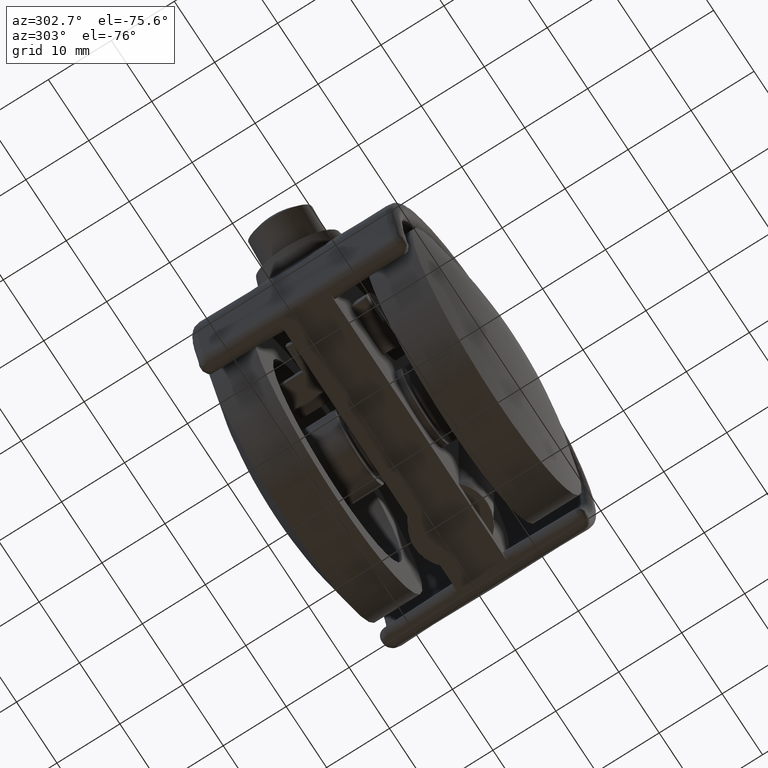
[diagram: clean part render]
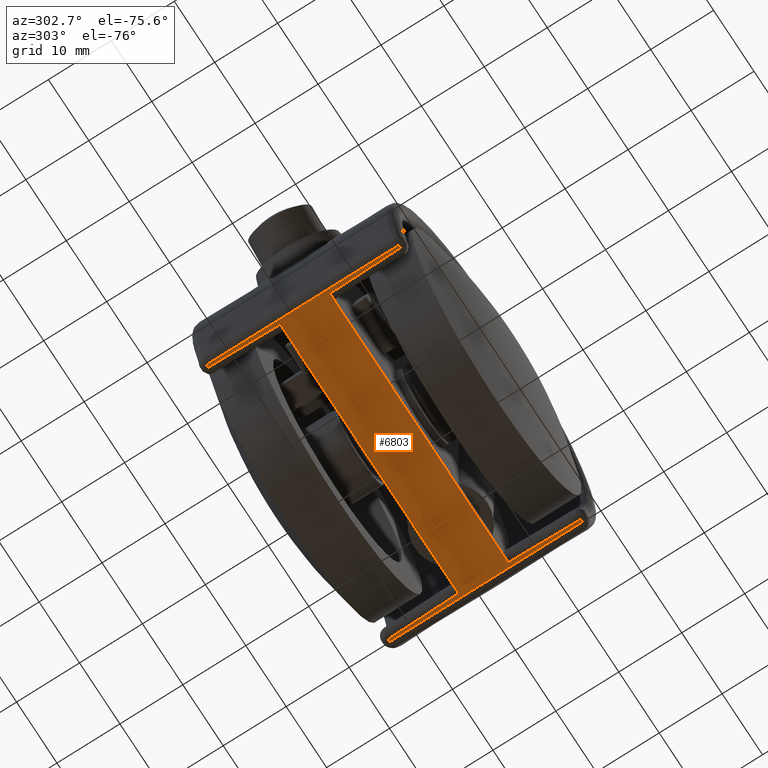
[diagram: same view with one face highlighted and labeled with its STEP entity id]
A machine part, auxiliary view. The second image highlights one B-rep face of the part: STEP entity #6803.
In plain terms, the highlighted face is a freeform B-spline surface patch.
Its self-contained STEP definition (entity closure, byte-faithful):
#4509=CARTESIAN_POINT('',(-22.069919937677799,-3.950000000000000,-9.700000000000001));
#4510=VERTEX_POINT('',#4509);
#4578=CARTESIAN_POINT('',(-22.286015014921698,-15.300000000000001,-9.700000000000001));
#4579=VERTEX_POINT('',#4578);
#4589=CARTESIAN_POINT('',(-22.069919937677799,-3.950000000000000,-9.700000000000001));
#4590=CARTESIAN_POINT('',(-22.099499015672961,-7.734022974811633,-9.700000000000001));
#4591=CARTESIAN_POINT('',(-22.171588934910989,-11.517591989419410,-9.700000000000001));
#4592=CARTESIAN_POINT('',(-22.286015014921649,-15.300000000000001,-9.700000000000001));
#4593=QUASI_UNIFORM_CURVE('',3,(#4589,#4590,#4591,#4592),.UNSPECIFIED.,.F.,.U.);
#4594=EDGE_CURVE('',#4510,#4579,#4593,.T.);
#4964=CARTESIAN_POINT('',(22.286015014921698,-15.300000000000001,-9.700000000000001));
#4965=VERTEX_POINT('',#4964);
#4966=CARTESIAN_POINT('',(22.069919937677749,-3.950000000000000,-9.700000000000001));
#4967=VERTEX_POINT('',#4966);
#4968=CARTESIAN_POINT('',(22.286015014921698,-15.300000000000001,-9.700000000000001));
#4969=CARTESIAN_POINT('',(22.171588934911039,-11.517591989419410,-9.700000000000001));
#4970=CARTESIAN_POINT('',(22.099499015673011,-7.734022974811633,-9.700000000000001));
#4971=CARTESIAN_POINT('',(22.069919937677749,-3.950000000000000,-9.700000000000001));
#4972=QUASI_UNIFORM_CURVE('',3,(#4968,#4969,#4970,#4971),.UNSPECIFIED.,.F.,.U.);
#4973=EDGE_CURVE('',#4965,#4967,#4972,.T.);
#5125=CARTESIAN_POINT('',(22.695375044268399,15.280739539795499,-9.700000000000001));
#5126=VERTEX_POINT('',#5125);
#5140=CARTESIAN_POINT('',(22.582073607177900,15.300000000000001,-9.700000000000001));
#5141=VERTEX_POINT('',#5140);
#5142=CARTESIAN_POINT('',(22.582073607177900,15.300000000000001,-9.700000000000001));
#5143=CARTESIAN_POINT('',(22.620932134522409,15.300000000000001,-9.700000000000001));
#5144=CARTESIAN_POINT('',(22.658709036317489,15.293637237748040,-9.700000000000001));
#5145=CARTESIAN_POINT('',(22.695375044268399,15.280739539795499,-9.700000000000001));
#5146=QUASI_UNIFORM_CURVE('',3,(#5142,#5143,#5144,#5145),.UNSPECIFIED.,.F.,.U.);
#5147=EDGE_CURVE('',#5141,#5126,#5146,.T.);
#5399=CARTESIAN_POINT('',(-22.695375044268399,15.280739539795499,-9.700000000000001));
#5400=VERTEX_POINT('',#5399);
#5401=CARTESIAN_POINT('',(-22.582073607177900,15.300000000000001,-9.700000000000001));
#5402=VERTEX_POINT('',#5401);
#5403=CARTESIAN_POINT('',(-22.695375044268399,15.280739539795499,-9.700000000000001));
#5404=CARTESIAN_POINT('',(-22.658968062889510,15.293546122116030,-9.700000000000001));
#5405=CARTESIAN_POINT('',(-22.620665086453968,15.300000000000340,-9.700000000000001));
#5406=CARTESIAN_POINT('',(-22.582073607177900,15.300000000000001,-9.700000000000001));
#5407=QUASI_UNIFORM_CURVE('',3,(#5403,#5404,#5405,#5406),.UNSPECIFIED.,.F.,.U.);
#5408=EDGE_CURVE('',#5400,#5402,#5407,.T.);
#5528=CARTESIAN_POINT('',(22.695375044268399,-15.280739539795601,-9.700000000000001));
#5529=VERTEX_POINT('',#5528);
#5553=CARTESIAN_POINT('',(22.695375044268399,15.280739539795499,-9.700000000000001));
#5554=CARTESIAN_POINT('',(22.695375044268399,-15.280739539795601,-9.700000000000001));
#5555=QUASI_UNIFORM_CURVE('',1,(#5553,#5554),.UNSPECIFIED.,.F.,.U.);
#5556=EDGE_CURVE('',#5126,#5529,#5555,.T.);
#5581=CARTESIAN_POINT('',(-22.695375044268399,-15.280739539795601,-9.700000000000001));
#5582=VERTEX_POINT('',#5581);
#5614=CARTESIAN_POINT('',(-22.695375044268399,-15.280739539795601,-9.700000000000001));
#5615=CARTESIAN_POINT('',(-22.695375044268399,15.280739539795499,-9.700000000000001));
#5616=QUASI_UNIFORM_CURVE('',1,(#5614,#5615),.UNSPECIFIED.,.F.,.U.);
#5617=EDGE_CURVE('',#5582,#5400,#5616,.T.);
#5907=CARTESIAN_POINT('',(22.582073607177900,-15.300000000000001,-9.700000000000001));
#5908=VERTEX_POINT('',#5907);
#5922=CARTESIAN_POINT('',(22.695375044268399,-15.280739539795601,-9.700000000000001));
#5923=CARTESIAN_POINT('',(22.658968062889510,-15.293546122116130,-9.700000000000001));
#5924=CARTESIAN_POINT('',(22.620665086453968,-15.300000000000489,-9.700000000000001));
#5925=CARTESIAN_POINT('',(22.582073607177900,-15.300000000000001,-9.700000000000001));
#5926=QUASI_UNIFORM_CURVE('',3,(#5922,#5923,#5924,#5925),.UNSPECIFIED.,.F.,.U.);
#5927=EDGE_CURVE('',#5529,#5908,#5926,.T.);
#5953=CARTESIAN_POINT('',(-22.582073607177900,-15.300000000000001,-9.700000000000001));
#5954=VERTEX_POINT('',#5953);
#5955=CARTESIAN_POINT('',(-22.582073607177900,-15.300000000000001,-9.700000000000001));
#5956=CARTESIAN_POINT('',(-22.620932134522398,-15.300000000000001,-9.700000000000001));
#5957=CARTESIAN_POINT('',(-22.658709036317489,-15.293637237748131,-9.700000000000001));
#5958=CARTESIAN_POINT('',(-22.695375044268399,-15.280739539795601,-9.700000000000001));
#5959=QUASI_UNIFORM_CURVE('',3,(#5955,#5956,#5957,#5958),.UNSPECIFIED.,.F.,.U.);
#5960=EDGE_CURVE('',#5954,#5582,#5959,.T.);
#6002=CARTESIAN_POINT('',(22.069919937677849,3.950000000000000,-9.700000000000001));
#6003=VERTEX_POINT('',#6002);
#6071=CARTESIAN_POINT('',(22.286015014921698,15.300000000000001,-9.700000000000001));
#6072=VERTEX_POINT('',#6071);
#6084=CARTESIAN_POINT('',(22.069919937677849,3.950000000000000,-9.700000000000001));
#6085=CARTESIAN_POINT('',(22.099499015673011,7.734022974811631,-9.700000000000001));
#6086=CARTESIAN_POINT('',(22.171588934910989,11.517591989419410,-9.700000000000001));
#6087=CARTESIAN_POINT('',(22.286015014921698,15.300000000000001,-9.700000000000001));
#6088=QUASI_UNIFORM_CURVE('',3,(#6084,#6085,#6086,#6087),.UNSPECIFIED.,.F.,.U.);
#6089=EDGE_CURVE('',#6003,#6072,#6088,.T.);
#6489=CARTESIAN_POINT('',(-22.286015014921698,15.300000000000001,-9.700000000000001));
#6490=VERTEX_POINT('',#6489);
#6491=CARTESIAN_POINT('',(-22.069919937677799,3.950000000000000,-9.700000000000001));
#6492=VERTEX_POINT('',#6491);
#6493=CARTESIAN_POINT('',(-22.286015014921698,15.300000000000001,-9.700000000000001));
#6494=CARTESIAN_POINT('',(-22.171588934911039,11.517591989419410,-9.700000000000001));
#6495=CARTESIAN_POINT('',(-22.099499015673011,7.734022974811633,-9.700000000000001));
#6496=CARTESIAN_POINT('',(-22.069919937677849,3.950000000000000,-9.700000000000001));
#6497=QUASI_UNIFORM_CURVE('',3,(#6493,#6494,#6495,#6496),.UNSPECIFIED.,.F.,.U.);
#6498=EDGE_CURVE('',#6490,#6492,#6497,.T.);
#6648=CARTESIAN_POINT('',(22.582073607177900,-15.300000000000001,-9.700000000000001));
#6649=CARTESIAN_POINT('',(22.286015014921698,-15.300000000000001,-9.700000000000001));
#6650=QUASI_UNIFORM_CURVE('',1,(#6648,#6649),.UNSPECIFIED.,.F.,.U.);
#6651=EDGE_CURVE('',#5908,#4965,#6650,.T.);
#6671=CARTESIAN_POINT('',(22.286015014921698,15.300000000000001,-9.700000000000001));
#6672=CARTESIAN_POINT('',(22.582073607177900,15.300000000000001,-9.700000000000001));
#6673=QUASI_UNIFORM_CURVE('',1,(#6671,#6672),.UNSPECIFIED.,.F.,.U.);
#6674=EDGE_CURVE('',#6072,#5141,#6673,.T.);
#6700=CARTESIAN_POINT('',(-22.582073607177900,15.300000000000001,-9.700000000000001));
#6701=CARTESIAN_POINT('',(-22.286015014921698,15.300000000000001,-9.700000000000001));
#6702=QUASI_UNIFORM_CURVE('',1,(#6700,#6701),.UNSPECIFIED.,.F.,.U.);
#6703=EDGE_CURVE('',#5402,#6490,#6702,.T.);
#6735=CARTESIAN_POINT('',(-22.286015014921698,-15.300000000000001,-9.700000000000001));
#6736=CARTESIAN_POINT('',(-22.582073607177900,-15.300000000000001,-9.700000000000001));
#6737=QUASI_UNIFORM_CURVE('',1,(#6735,#6736),.UNSPECIFIED.,.F.,.U.);
#6738=EDGE_CURVE('',#4579,#5954,#6737,.T.);
#6772=CARTESIAN_POINT('',(-24.962643349310621,-16.828470227942169,-9.700000000000001));
#6773=CARTESIAN_POINT('',(24.962644160960480,-16.828470227942169,-9.700000000000001));
#6774=CARTESIAN_POINT('',(-24.962643349310621,16.828470775112809,-9.700000000000001));
#6775=CARTESIAN_POINT('',(24.962644160960480,16.828470775112809,-9.700000000000001));
#6776=B_SPLINE_SURFACE_WITH_KNOTS('',1,1,((#6772,#6774),(#6773,#6775)),.UNSPECIFIED.,.F.,.F.,.U.,(2,2),(2,2),(0.0,49.925287510271097),(0.0,33.656941003054982),.UNSPECIFIED.);
#6777=CARTESIAN_POINT('',(-22.069919937677799,3.950000000000000,-9.700000000000001));
#6778=CARTESIAN_POINT('',(22.069919937677849,3.950000000000000,-9.700000000000001));
#6779=QUASI_UNIFORM_CURVE('',1,(#6777,#6778),.UNSPECIFIED.,.F.,.U.);
#6780=EDGE_CURVE('',#6492,#6003,#6779,.T.);
#6781=ORIENTED_EDGE('',*,*,#6780,.T.);
#6782=ORIENTED_EDGE('',*,*,#6089,.T.);
#6783=ORIENTED_EDGE('',*,*,#6674,.T.);
#6784=ORIENTED_EDGE('',*,*,#5147,.T.);
#6785=ORIENTED_EDGE('',*,*,#5556,.T.);
#6786=ORIENTED_EDGE('',*,*,#5927,.T.);
#6787=ORIENTED_EDGE('',*,*,#6651,.T.);
#6788=ORIENTED_EDGE('',*,*,#4973,.T.);
#6789=CARTESIAN_POINT('',(22.069919937677749,-3.950000000000000,-9.700000000000001));
#6790=CARTESIAN_POINT('',(-22.069919937677799,-3.950000000000000,-9.700000000000001));
#6791=QUASI_UNIFORM_CURVE('',1,(#6789,#6790),.UNSPECIFIED.,.F.,.U.);
#6792=EDGE_CURVE('',#4967,#4510,#6791,.T.);
#6793=ORIENTED_EDGE('',*,*,#6792,.T.);
#6794=ORIENTED_EDGE('',*,*,#4594,.T.);
#6795=ORIENTED_EDGE('',*,*,#6738,.T.);
#6796=ORIENTED_EDGE('',*,*,#5960,.T.);
#6797=ORIENTED_EDGE('',*,*,#5617,.T.);
#6798=ORIENTED_EDGE('',*,*,#5408,.T.);
#6799=ORIENTED_EDGE('',*,*,#6703,.T.);
#6800=ORIENTED_EDGE('',*,*,#6498,.T.);
#6801=EDGE_LOOP('',(#6781,#6782,#6783,#6784,#6785,#6786,#6787,#6788,#6793,#6794,#6795,#6796,#6797,#6798,#6799,#6800));
#6802=FACE_OUTER_BOUND('',#6801,.T.);
#6803=ADVANCED_FACE('',(#6802),#6776,.F.);